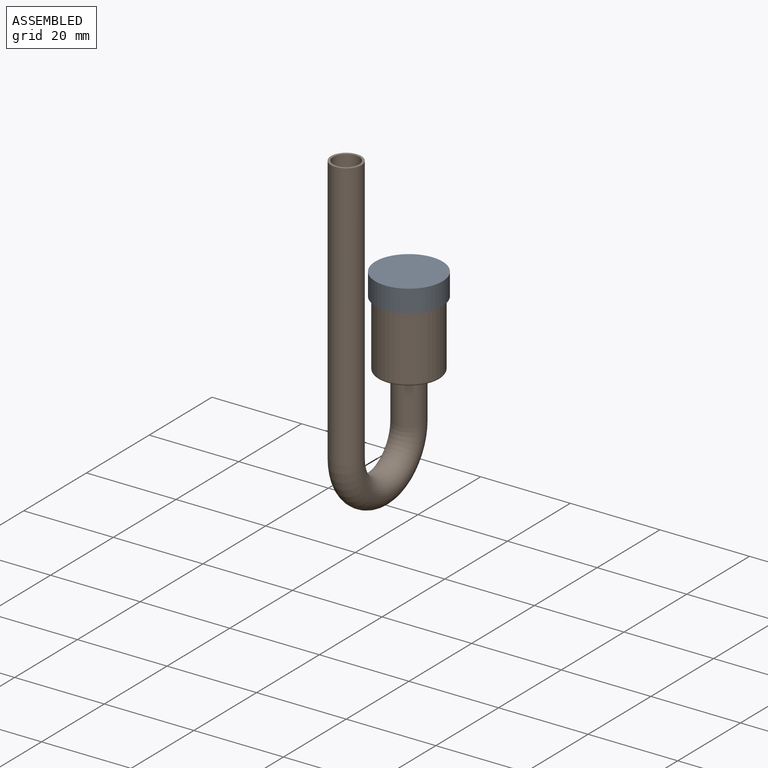
[diagram: assembled view]
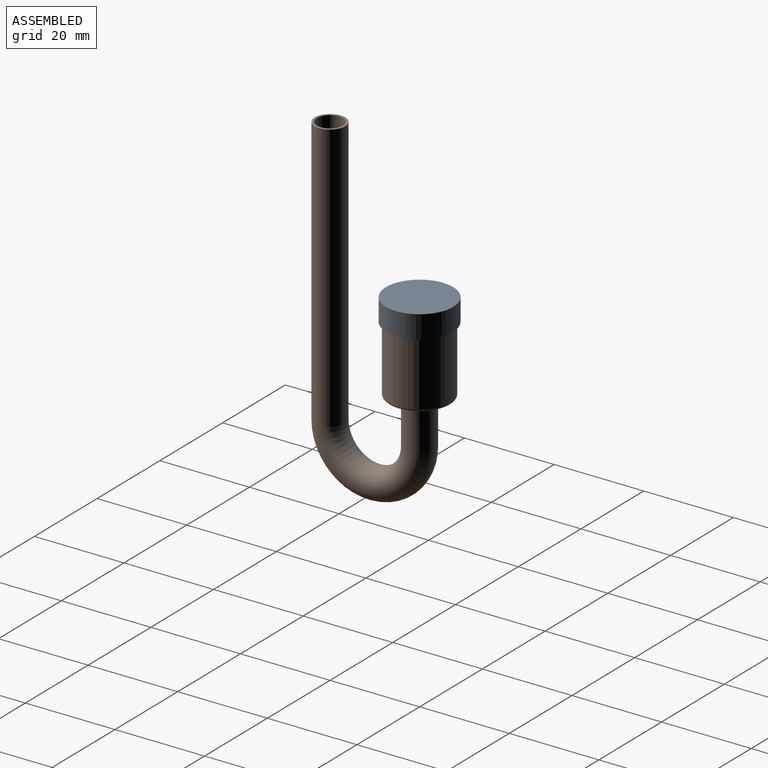
[diagram: assembled view, second angle]
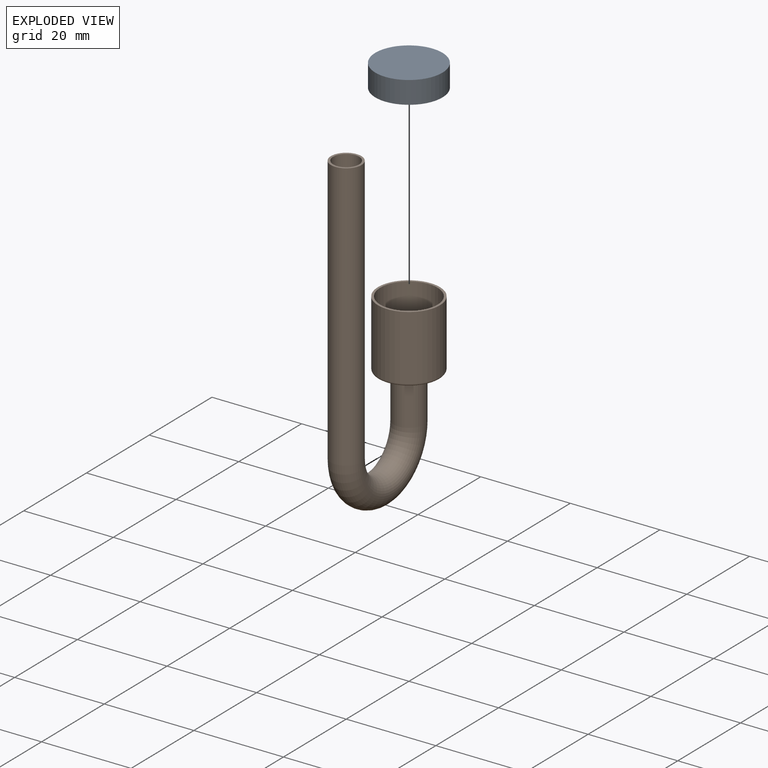
[diagram: exploded view]
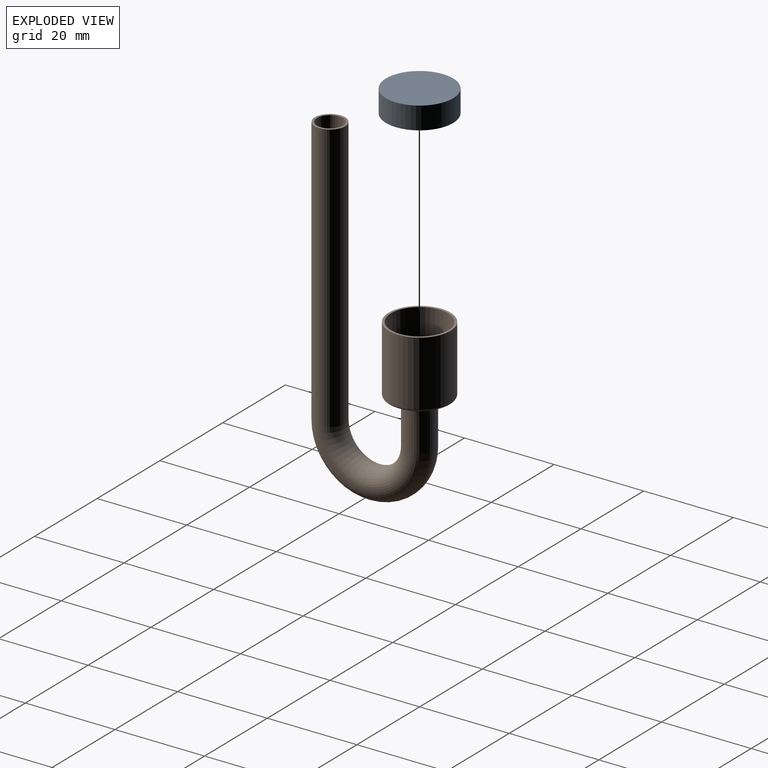
[diagram: exploded view, second angle]
ASSEMBLY  parts=2 mates=2
PART A: 3 faces, bbox 15x15x5 mm
  f0: cylinder r=7.5mm len=15mm, axis (0,0,-1), area 235.6mm2, adj f1,f2
  f1: plane 15x15mm, normal (0,0,1), area 176.7mm2, adj f0
  f2: plane 15x15mm, normal (0,0,-1), area 176.7mm2, adj f0
PART B: 16 faces, bbox 14.9x32x74.5 mm
  f0: cylinder r=2.9mm len=60mm, axis (0,0,-1), area 1093.3mm2, adj f1,f3
  f1: torus R=10mm, axis (1,0,0), area 572.4mm2, adj f0,f2
  f2: cylinder r=2.9mm len=10mm, axis (0,0,1), area 182.2mm2, adj f1,f14
  f3: plane 6.8x6.8mm, normal (0,0,1), area 9.9mm2, adj f0,f4
  f4: cylinder r=3.4mm len=60mm, axis (0,0,-1), area 1281.8mm2, adj f3,f5
  f5: torus R=10mm, axis (1,0,0), area 671.1mm2, adj f4,f6
  f6: cylinder r=3.4mm len=9.5mm, axis (0,0,1), area 202.9mm2, adj f5,f15
  f7: plane 12.8x12.8mm, normal (0,0,-1), area 80.9mm2, adj f12,f15
  f8: cylinder r=6.9mm len=14.5mm, axis (0,0,1), area 628.6mm2, adj f9,f12
  f9: plane 13.8x13.8mm, normal (0,0,1), area 20.9mm2, adj f8,f10
  f10: cylinder r=6.4mm len=14mm, axis (0,0,1), area 563mm2, adj f9,f13
  f11: plane 11.8x11.8mm, normal (0,0,1), area 73mm2, adj f13,f14
  f12: torus R=6.4mm, axis (0,0,1), area 33.2mm2, adj f7,f8
  f13: torus R=5.9mm, axis (0,0,-1), area 30.7mm2, adj f10,f11
  f14: torus R=3.4mm, axis (0,0,-1), area 15.2mm2, adj f2,f11
  f15: torus R=3.9mm, axis (0,0,1), area 17.7mm2, adj f6,f7
PLACE A t=(0,-20,42)mm
PLACE B t=(0,-20,42)mm fixed
MATE slider A.f0 <-> B.f2  axis (0,0,-1) through (0,0,9.5)mm
MATE planar A.f0 <-> B.f2  axis (0,0,-1) through (0,0,7)mm
